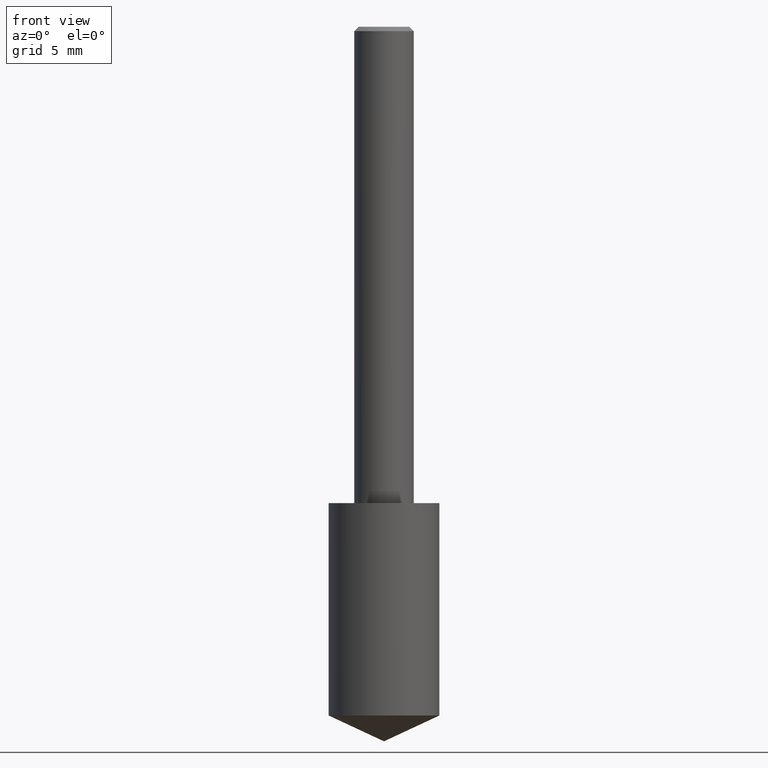
[diagram: clean part render]
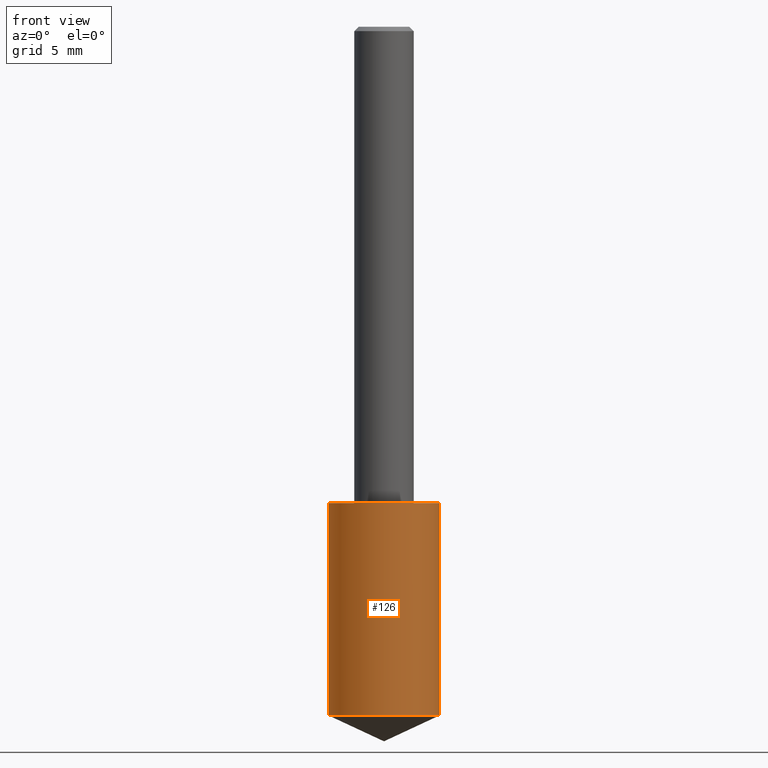
[diagram: same view with one face highlighted and labeled with its STEP entity id]
A machine part, front view. The second image highlights one B-rep face of the part: STEP entity #126.
In plain terms, the highlighted cylindrical surface (partial cylindrical patch) has radius 2.9502 mm, axis along (-0, 0, 1).
Its self-contained STEP definition (entity closure, byte-faithful):
#14 = CARTESIAN_POINT ( 'NONE',  ( 0.1161500000000000032, -4.302552453856406512E-15, -1.000000000000000222 ) ) ;
#30 = DIRECTION ( 'NONE',  ( -2.445468806185136597E-29, 3.491481338843145583E-15, 1.000000000000000000 ) ) ;
#41 = DIRECTION ( 'NONE',  ( -2.445468806185136597E-29, 3.491481338843145583E-15, 1.000000000000000000 ) ) ;
#43 = AXIS2_PLACEMENT_3D ( 'NONE', #149, #93, #303 ) ;
#45 = CARTESIAN_POINT ( 'NONE',  ( -0.1161500000000000310, -4.222822284559862787E-15, -1.445838365505297096 ) ) ;
#65 = AXIS2_PLACEMENT_3D ( 'NONE', #330, #30, #86 ) ;
#70 = DIRECTION ( 'NONE',  ( 1.000000000000000000, -6.982962677686265922E-15, 0.000000000000000000 ) ) ;
#86 = DIRECTION ( 'NONE',  ( 1.000000000000000000, -6.982962677686265922E-15, 0.000000000000000000 ) ) ;
#93 = DIRECTION ( 'NONE',  ( -2.445468806185136597E-29, 3.491481338843145583E-15, 1.000000000000000000 ) ) ;
#94 = AXIS2_PLACEMENT_3D ( 'NONE', #264, #41, #70 ) ;
#115 = VERTEX_POINT ( 'NONE', #163 ) ;
#117 = CARTESIAN_POINT ( 'NONE',  ( 0.1161500000000000310, -5.859188787158480302E-15, -1.445838365505297096 ) ) ;
#126 = ADVANCED_FACE ( 'NONE', ( #139 ), #219, .T. ) ;
#127 = CARTESIAN_POINT ( 'NONE',  ( -0.1161500000000000032, -2.666185951257790180E-15, -1.000000000000000222 ) ) ;
#139 = FACE_OUTER_BOUND ( 'NONE', #292, .T. ) ;
#149 = CARTESIAN_POINT ( 'NONE',  ( 3.535752621628908194E-29, -5.048117672145220556E-15, -1.445838365505297096 ) ) ;
#157 = ORIENTED_EDGE ( 'NONE', *, *, #335, .F. ) ;
#163 = CARTESIAN_POINT ( 'NONE',  ( -0.1161500000000000032, -3.444504117908826680E-15, -1.000000000000000222 ) ) ;
#175 = EDGE_CURVE ( 'NONE', #204, #286, #255, .T. ) ;
#179 = CIRCLE ( 'NONE', #94, 0.1161500000000000032 ) ;
#180 = EDGE_CURVE ( 'NONE', #314, #204, #196, .T. ) ;
#185 = ORIENTED_EDGE ( 'NONE', *, *, #297, .F. ) ;
#186 = CARTESIAN_POINT ( 'NONE',  ( 0.1161500000000000032, -4.302552453856405723E-15, -1.000000000000000222 ) ) ;
#196 = CIRCLE ( 'NONE', #43, 0.1161500000000000032 ) ;
#204 = VERTEX_POINT ( 'NONE', #117 ) ;
#219 = CYLINDRICAL_SURFACE ( 'NONE', #65, 0.1161500000000000032 ) ;
#223 = DIRECTION ( 'NONE',  ( -2.445468806185136877E-29, 3.491481338843145188E-15, 1.000000000000000000 ) ) ;
#238 = LINE ( 'NONE', #127, #276 ) ;
#255 = LINE ( 'NONE', #14, #328 ) ;
#263 = DIRECTION ( 'NONE',  ( -2.445468806185136877E-29, 3.491481338843145188E-15, 1.000000000000000000 ) ) ;
#264 = CARTESIAN_POINT ( 'NONE',  ( 2.445468806185136877E-29, -3.491481338843145977E-15, -1.000000000000000222 ) ) ;
#276 = VECTOR ( 'NONE', #263, 39.37007874015748143 ) ;
#286 = VERTEX_POINT ( 'NONE', #186 ) ;
#292 = EDGE_LOOP ( 'NONE', ( #157, #336, #315, #185 ) ) ;
#297 = EDGE_CURVE ( 'NONE', #115, #286, #179, .T. ) ;
#303 = DIRECTION ( 'NONE',  ( 1.000000000000000000, -6.982962677686265922E-15, 0.000000000000000000 ) ) ;
#314 = VERTEX_POINT ( 'NONE', #45 ) ;
#315 = ORIENTED_EDGE ( 'NONE', *, *, #175, .T. ) ;
#328 = VECTOR ( 'NONE', #223, 39.37007874015748143 ) ;
#330 = CARTESIAN_POINT ( 'NONE',  ( 2.445468806185137438E-29, -3.491481338843146371E-15, -1.000000000000000222 ) ) ;
#335 = EDGE_CURVE ( 'NONE', #314, #115, #238, .T. ) ;
#336 = ORIENTED_EDGE ( 'NONE', *, *, #180, .T. ) ;